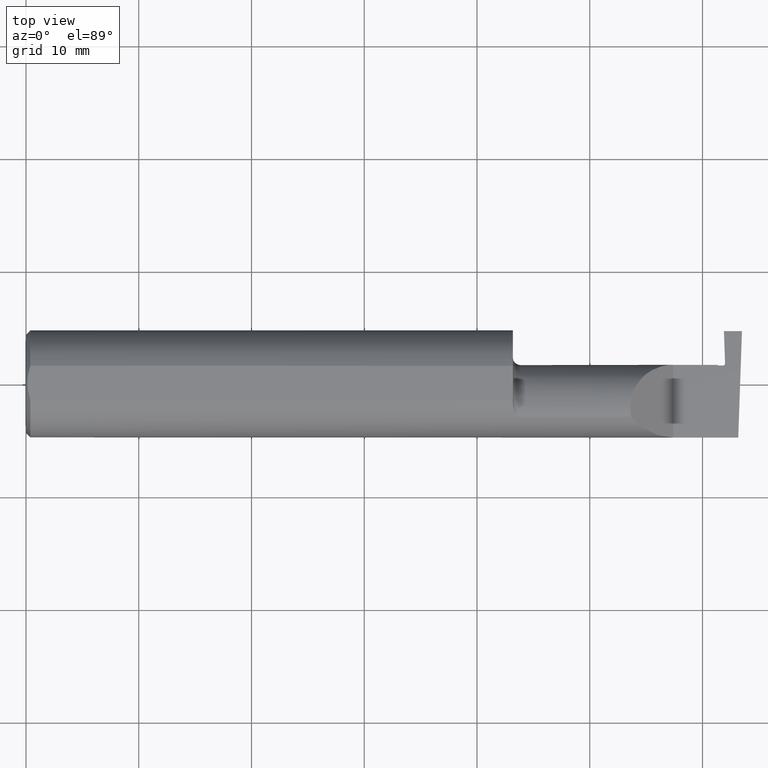
[diagram: clean part render]
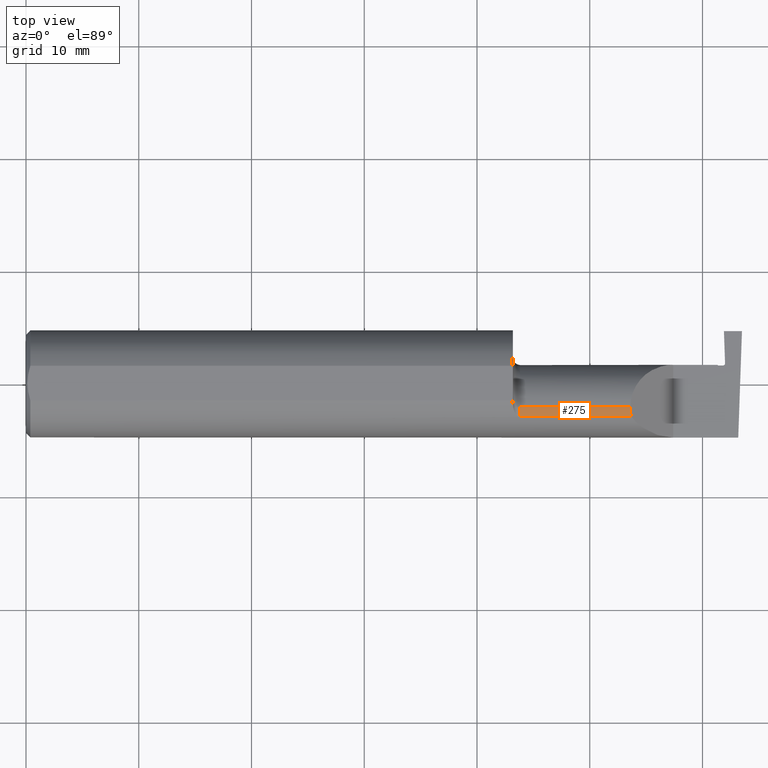
[diagram: same view with one face highlighted and labeled with its STEP entity id]
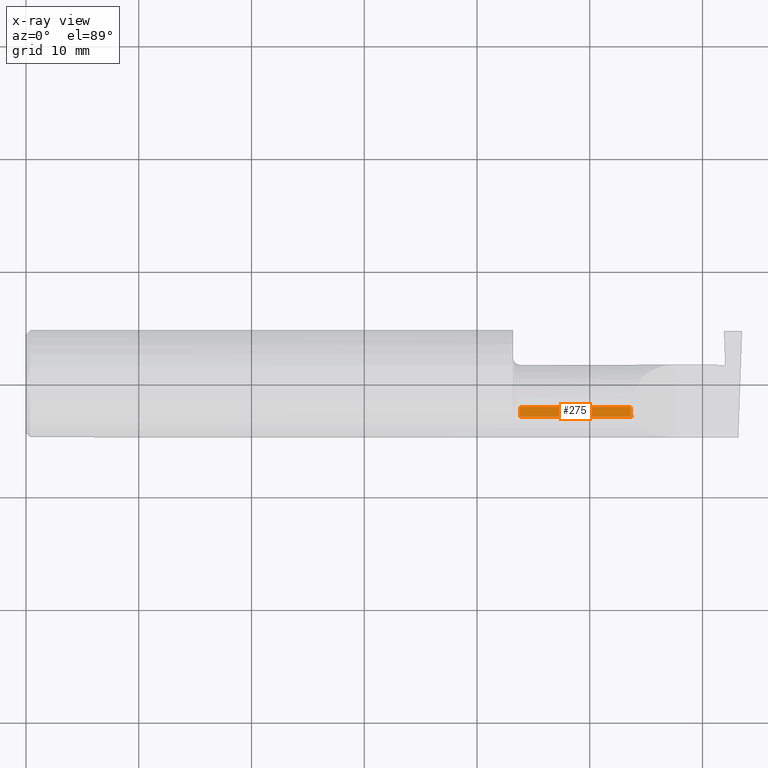
[diagram: x-ray of the same camera — body ghosted, the highlighted face saturated]
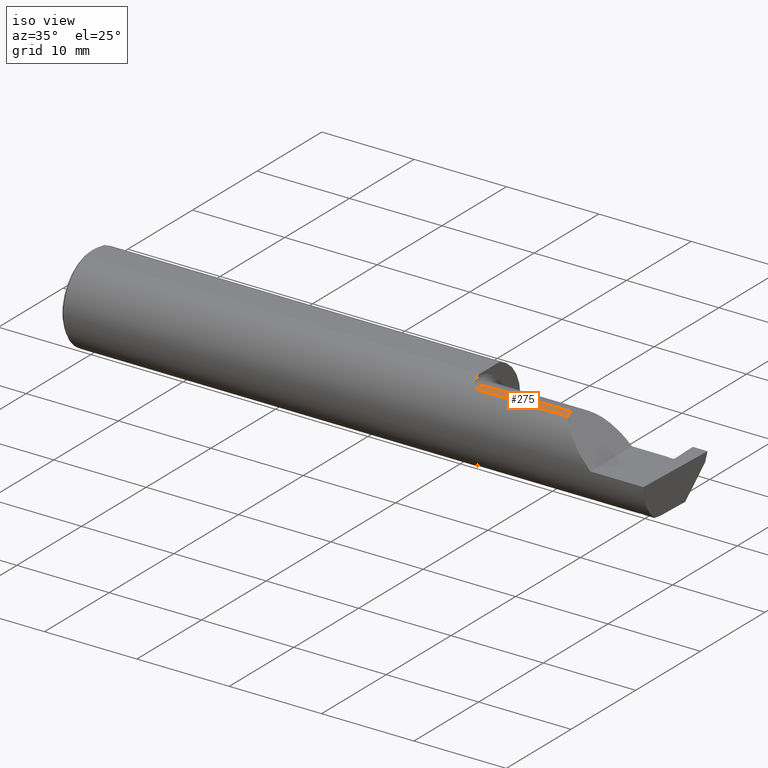
[diagram: same view with one face highlighted and labeled with its STEP entity id]
A machine part, top view. The second image highlights one B-rep face of the part: STEP entity #275.
The next image is the same camera in x-ray: the body ghosted, the highlighted face saturated — about 0% of this face is hidden behind the body in this view.
A second angle (iso view) of the same face is appended — the face is thin or edge-on in the first view.
In plain terms, the highlighted cylindrical surface (partial cylindrical patch) has radius 3.81 mm, axis along (-1, -0, -0).
Its self-contained STEP definition (entity closure, byte-faithful):
#5 = CIRCLE ( 'NONE', #835, 0.1499999999999999944 ) ;
#6 = CARTESIAN_POINT ( 'NONE',  ( 1.724999999999999867, -0.1172600179964007477, 0.1461167706989302817 ) ) ;
#7 = CARTESIAN_POINT ( 'NONE',  ( 2.113883229301070532, -0.1172600179964009143, 0.1461167706989301707 ) ) ;
#83 = EDGE_CURVE ( 'NONE', #161, #197, #729, .T. ) ;
#143 = ORIENTED_EDGE ( 'NONE', *, *, #478, .F. ) ;
#161 = VERTEX_POINT ( 'NONE', #7 ) ;
#165 = FACE_OUTER_BOUND ( 'NONE', #709, .T. ) ;
#176 = CARTESIAN_POINT ( 'NONE',  ( 1.699999999999999956, -0.08334999999999996578, 0.000000000000000000 ) ) ;
#197 = VERTEX_POINT ( 'NONE', #876 ) ;
#243 = ORIENTED_EDGE ( 'NONE', *, *, #83, .T. ) ;
#275 = ADVANCED_FACE ( 'NONE', ( #165 ), #349, .T. ) ;
#328 = DIRECTION ( 'NONE',  ( 0.000000000000000000, 0.000000000000000000, 1.000000000000000000 ) ) ;
#349 = CYLINDRICAL_SURFACE ( 'NONE', #491, 0.1499999999999999944 ) ;
#365 = CARTESIAN_POINT ( 'NONE',  ( 1.699999999999999956, -0.08334999999999996578, 0.1499999999999999944 ) ) ;
#366 = CARTESIAN_POINT ( 'NONE',  ( 2.113883229301070532, -0.1172600179964009143, 0.1461167706989301707 ) ) ;
#367 = VECTOR ( 'NONE', #915, 39.37007874015748143 ) ;
#444 = EDGE_CURVE ( 'NONE', #765, #161, #683, .T. ) ;
#460 = CARTESIAN_POINT ( 'NONE',  ( 2.110000000000000764, -0.09477667630339427218, 0.1499999999999999944 ) ) ;
#478 = EDGE_CURVE ( 'NONE', #765, #621, #5, .T. ) ;
#491 = AXIS2_PLACEMENT_3D ( 'NONE', #176, #501, #328 ) ;
#498 = ORIENTED_EDGE ( 'NONE', *, *, #519, .T. ) ;
#501 = DIRECTION ( 'NONE',  ( -1.000000000000000000, -0.000000000000000000, -0.000000000000000000 ) ) ;
#519 = EDGE_CURVE ( 'NONE', #197, #621, #525, .T. ) ;
#525 = LINE ( 'NONE', #365, #958 ) ;
#538 = CARTESIAN_POINT ( 'NONE',  ( 2.078500000000000014, -0.1172600179964007061, 0.1461167706989303094 ) ) ;
#612 = CARTESIAN_POINT ( 'NONE',  ( 1.724999999999999867, -0.08334999999999996578, 0.000000000000000000 ) ) ;
#619 = CARTESIAN_POINT ( 'NONE',  ( 2.110000000000001208, -0.08334999999999996578, 0.1499999999999999944 ) ) ;
#621 = VERTEX_POINT ( 'NONE', #625 ) ;
#625 = CARTESIAN_POINT ( 'NONE',  ( 1.724999999999999867, -0.08334999999999996578, 0.1499999999999999944 ) ) ;
#637 = DIRECTION ( 'NONE',  ( -1.000000000000000000, -0.000000000000000000, -0.000000000000000000 ) ) ;
#678 = DIRECTION ( 'NONE',  ( -1.000000000000000000, -0.000000000000000000, -0.000000000000000000 ) ) ;
#683 = LINE ( 'NONE', #538, #367 ) ;
#709 = EDGE_LOOP ( 'NONE', ( #243, #498, #143, #947 ) ) ;
#729 =( BOUNDED_CURVE ( )  B_SPLINE_CURVE ( 3, ( #366, #1019, #460, #619 ),
 .UNSPECIFIED., .F., .T. ) 
 B_SPLINE_CURVE_WITH_KNOTS ( ( 4, 4 ),
 ( 6.055147272130140479, 6.283185307179586232 ),
 .UNSPECIFIED. ) 
 CURVE ( )  GEOMETRIC_REPRESENTATION_ITEM ( )  RATIONAL_B_SPLINE_CURVE ( ( 1.000000000000000000, 0.9956712472009929815, 0.9956712472009929815, 1.000000000000000000 ) ) 
 REPRESENTATION_ITEM ( '' )  );
#762 = DIRECTION ( 'NONE',  ( 0.000000000000000000, 0.000000000000000000, 1.000000000000000000 ) ) ;
#765 = VERTEX_POINT ( 'NONE', #6 ) ;
#835 = AXIS2_PLACEMENT_3D ( 'NONE', #612, #678, #762 ) ;
#876 = CARTESIAN_POINT ( 'NONE',  ( 2.110000000000001208, -0.08334999999999996578, 0.1499999999999999944 ) ) ;
#915 = DIRECTION ( 'NONE',  ( 1.000000000000000000, 0.000000000000000000, 0.000000000000000000 ) ) ;
#947 = ORIENTED_EDGE ( 'NONE', *, *, #444, .T. ) ;
#958 = VECTOR ( 'NONE', #637, 39.37007874015748143 ) ;
#1019 = CARTESIAN_POINT ( 'NONE',  ( 2.111300037307155986, -0.1061291577212410964, 0.1486999626928445783 ) ) ;